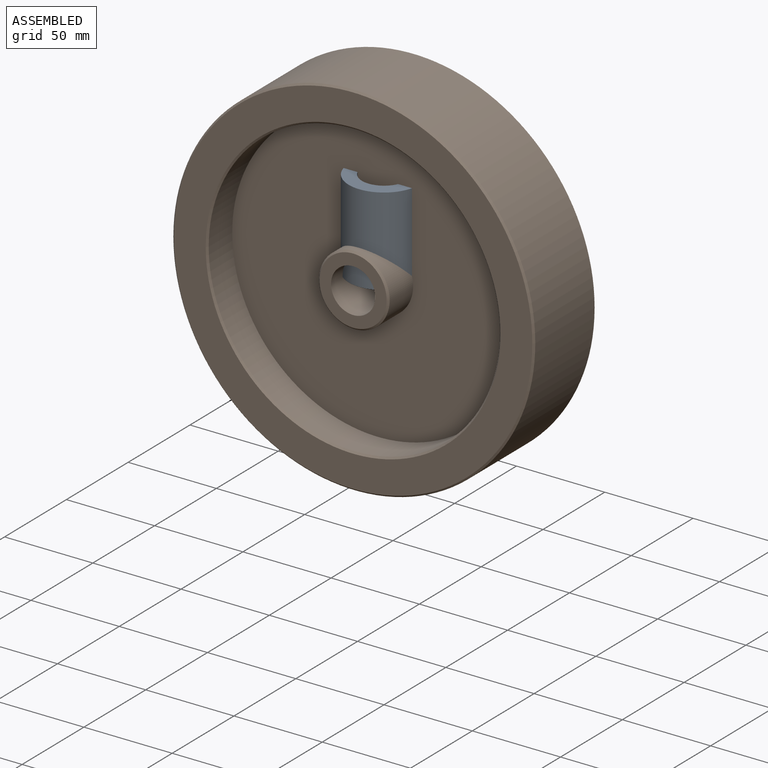
[diagram: assembled view]
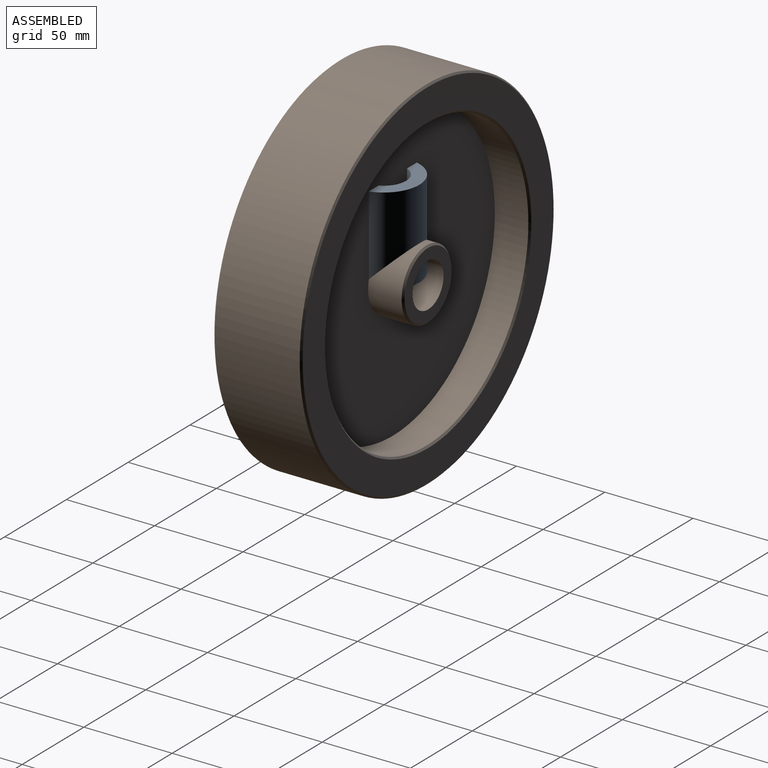
[diagram: assembled view, second angle]
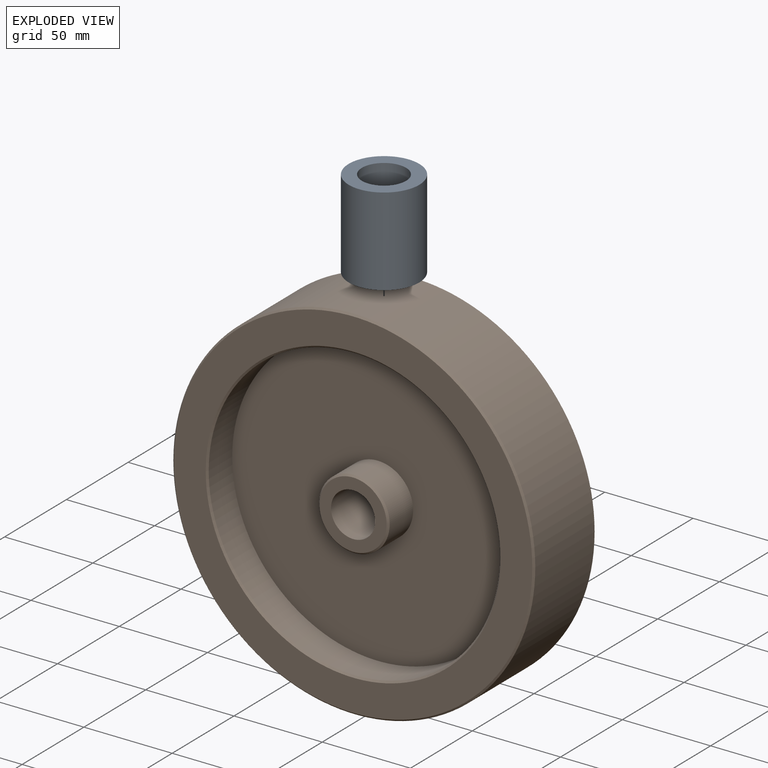
[diagram: exploded view]
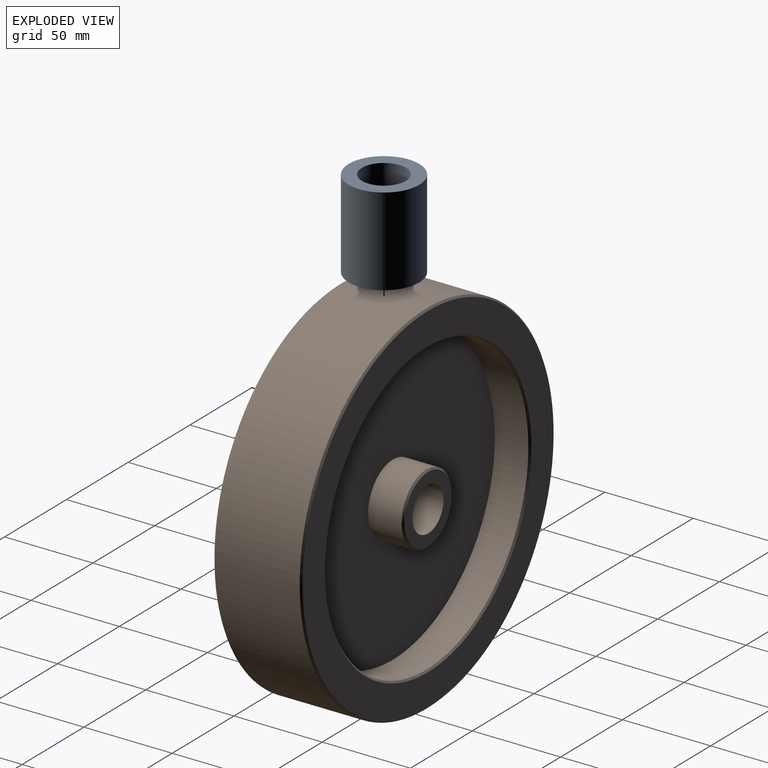
[diagram: exploded view, second angle]
FCSTD DOCUMENT  (FreeCAD 0.21R33668 +26 (Git))
Label: hovairGuidageGaletEtBague
License: All rights reserved
LicenseURL: http://en.wikipedia.org/wiki/All_rights_reserved
objects: App::Link×2
EXTERNAL_REF file=hovairGuidageGaletBague.FCStd obj=Body
EXTERNAL_REF file=hovairGuidageGalet.FCStd obj=Body

FEATURE [App::Link] Link  label="Body"
  LinkedObject = -> <external hovairGuidageGaletBague.FCStd>#Body
FEATURE [App::Link] Link001  label="Corps"
  LinkedObject = -> <external hovairGuidageGalet.FCStd>#Body

RESOLVED EXTERNAL PARTS (link-assembly join: the EXTERNAL_REF files above that resolve inside this repo's crawl, each included once):
---- part hovairGuidageGalet.FCStd = doc fcstd_4738af068f07 ----
FCSTD DOCUMENT  (FreeCAD 0.21R33668 +26 (Git))
Label: hovairGuidageGalet
License: All rights reserved
LicenseURL: http://en.wikipedia.org/wiki/All_rights_reserved
objects: Sketcher::SketchObject×1, PartDesign::Revolution×1, PartDesign::Chamfer×1, PartDesign::Body×1
note: 6 computed .brp shape members not serialized (recipe doc carries the construction recipe); baked Part::Feature solids carry a one-line shape summary decoded from their .brp

FEATURE [Sketcher::SketchObject] Sketch
  FullyConstrained = false
  MapMode = 5
  Support = -> [XY_Plane]
  sketch-geometry (15):
    g0: LineSegment StartX=-102.5 StartY=1e-16 StartZ=0 EndX=-102.5 EndY=25 EndZ=0
    g1: LineSegment StartX=-102.5 StartY=25 StartZ=0 EndX=-82.5 EndY=25 EndZ=0
    g2: LineSegment StartX=-82.5 StartY=25 StartZ=0 EndX=-82.5 EndY=5 EndZ=0
    g3: LineSegment StartX=-82.5 StartY=5 StartZ=0 EndX=-20 EndY=5 EndZ=0
    g4: LineSegment StartX=-20 StartY=5 StartZ=0 EndX=-20 EndY=25 EndZ=0
    g5: LineSegment StartX=-20 StartY=25 StartZ=0 EndX=-12.5 EndY=25 EndZ=0
    g6: LineSegment StartX=-12.5 StartY=25 StartZ=0 EndX=-12.5 EndY=0 EndZ=0
    g7: LineSegment StartX=-158.478 StartY=0 StartZ=0 EndX=75.116 EndY=0 EndZ=0
    g8: LineSegment StartX=-102.5 StartY=1e-16 StartZ=0 EndX=-102.5 EndY=-25 EndZ=0
    g9: LineSegment StartX=-102.5 StartY=-25 StartZ=0 EndX=-82.5 EndY=-25 EndZ=0
    g10: LineSegment StartX=-82.5 StartY=-25 StartZ=0 EndX=-82.5 EndY=-5 EndZ=0
    g11: LineSegment StartX=-82.5 StartY=-5 StartZ=0 EndX=-20 EndY=-5 EndZ=0
    g12: LineSegment StartX=-20 StartY=-5 StartZ=0 EndX=-20 EndY=-25 EndZ=0
    g13: LineSegment StartX=-20 StartY=-25 StartZ=0 EndX=-12.5 EndY=-25 EndZ=0
    g14: LineSegment StartX=-12.5 StartY=-25 StartZ=0 EndX=-12.5 EndY=0 EndZ=0
  constraints (45):
    c: Coincident(g0,g1)
    c: Coincident(g1,g2)
    c: Coincident(g2,g3)
    c: Coincident(g3,g4)
    c: Coincident(g4,g5)
    c: Coincident(g5,g6)
    c: Distance(g0) = 25
    c: Distance(g1) = 20
    c: Distance(g2) = 20
    c: Distance(g5) = 7.5
    c: Vertical(g0)
    c: Vertical(g2)
    c: Vertical(g4)
    c: Vertical(g6)
    c: Horizontal(g1)
    c: Horizontal(g3)
    c: Horizontal(g5)
    c: Equal(g0,g6)
    c: Equal(g2,g4)
    c: Distance(g0,g6) = 90
    c: DistanceX(g6,g-1) = 12.5
    c: DistanceY(g-1,g6) = 0
    c: Horizontal(g7)
    c: DistanceY(g7,g-1) = 0
    c: Coincident(g8,g9)
    c: Coincident(g9,g10)
    c: Coincident(g10,g11)
    c: Coincident(g11,g12)
    c: Coincident(g12,g13)
    c: Coincident(g13,g14)
    c: Distance(g8) = 25
    c: Distance(g9) = 20
    c: Distance(g10) = 20
    c: Distance(g13) = 7.5
    c: Vertical(g8)
    c: Vertical(g10)
    c: Vertical(g12)
    c: Vertical(g14)
    c: Horizontal(g9)
    c: Horizontal(g11)
    c: Horizontal(g13)
    c: Equal(g8,g14)
    c: Equal(g10,g12)
    c: Distance(g8,g14) = 90
    c: Coincident(g8,g0)
FEATURE [PartDesign::Revolution] Revolution
  Angle = 360
  Axis = (0,1,0)
  Base = (0,0,0)
  Profile = -> Sketch
  ReferenceAxis = -> Sketch [V_Axis]
FEATURE [PartDesign::Chamfer] Chamfer
  Angle = 45
  Base = -> Revolution [Edge4,Edge21,Edge2,Edge8,Edge19,Edge15]
  BaseFeature = -> Revolution
  ChamferType = 0
  FlipDirection = false
  Size = 1
  Size2 = 1
  SupportTransform = false
  UseAllEdges = false
FEATURE [PartDesign::Body] Body  label="Corps"
  Group = -> [Sketch,Revolution,Chamfer]
  Origin = -> Origin
  Tip = -> Chamfer
---- part hovairGuidageGaletBague.FCStd = doc fcstd_1e750eef8096 ----
FCSTD DOCUMENT  (FreeCAD 0.21R33668 +26 (Git))
Label: hovairGuidageGaletBague
License: All rights reserved
LicenseURL: http://en.wikipedia.org/wiki/All_rights_reserved
objects: Sketcher::SketchObject×2, PartDesign::Pad×1, PartDesign::Pocket×1, PartDesign::Body×1
note: 7 computed .brp shape members not serialized (recipe doc carries the construction recipe); baked Part::Feature solids carry a one-line shape summary decoded from their .brp

FEATURE [Sketcher::SketchObject] Sketch
  FullyConstrained = true
  MapMode = 5
  Support = -> [XY_Plane]
  sketch-geometry (1):
    g0: Circle CenterX=0 CenterY=0 CenterZ=0 NormalX=0 NormalY=0 NormalZ=1 AngleXU=0 Radius=20
  constraints (2):
    c: Coincident(g0,g-1)
    c: Diameter(g0) = 40
FEATURE [PartDesign::Pad] Pad
  Direction = (0,0,1)
  Length = 50
  Length2 = 10
  Profile = -> Sketch
  ReferenceAxis = -> Sketch [N_Axis]
  Type = 0
FEATURE [Sketcher::SketchObject] Sketch001
  FullyConstrained = true
  MapMode = 5
  Placement = pos=(0,0,50) rot=(0,0,1;0rad)
  Support = -> [Pad]
  sketch-geometry (1):
    g0: Circle CenterX=0 CenterY=0 CenterZ=0 NormalX=0 NormalY=0 NormalZ=1 AngleXU=0 Radius=12.5
  constraints (2):
    c: Coincident(g0,g-1)
    c: Diameter(g0) = 25
FEATURE [PartDesign::Pocket] Pocket
  BaseFeature = -> Pad
  Direction = (0,0,-1)
  Length = 5
  Length2 = 5
  Profile = -> Sketch001
  ReferenceAxis = -> Sketch001 [N_Axis]
  Type = 1
FEATURE [PartDesign::Body] Body
  Group = -> [Sketch,Pad,Sketch001,Pocket]
  Origin = -> Origin
  Tip = -> Pocket
